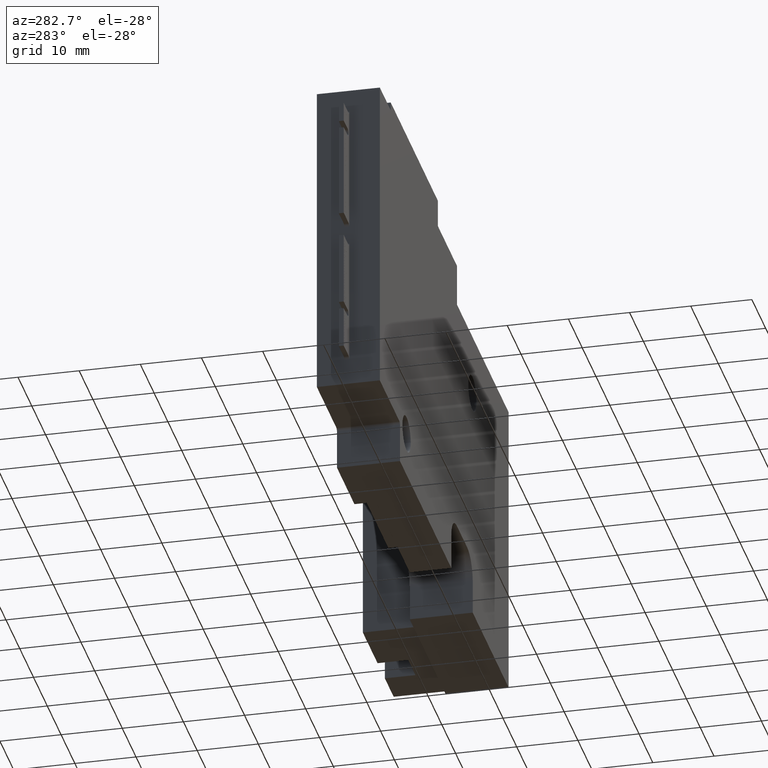
[diagram: clean part render]
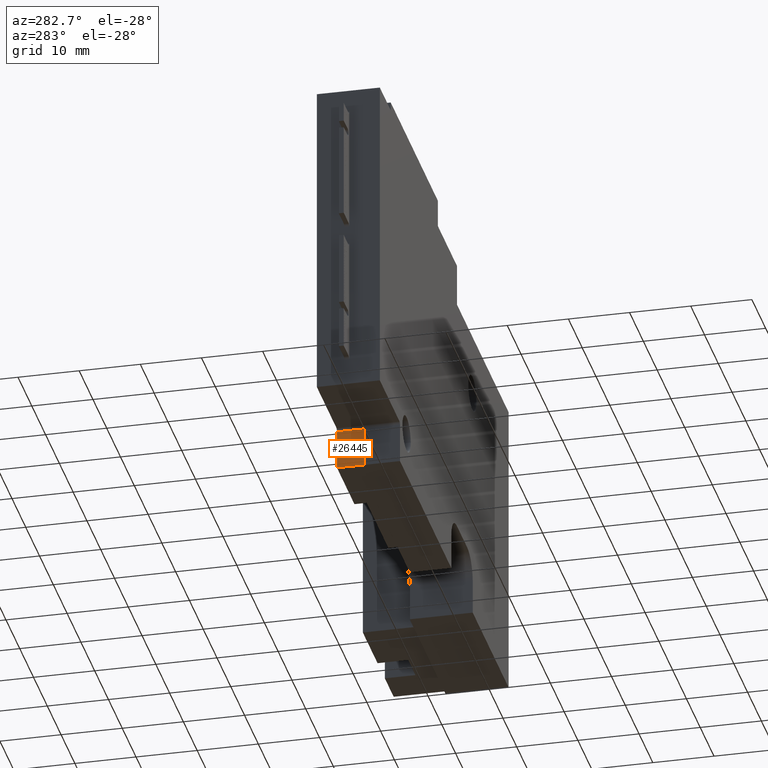
[diagram: same view with one face highlighted and labeled with its STEP entity id]
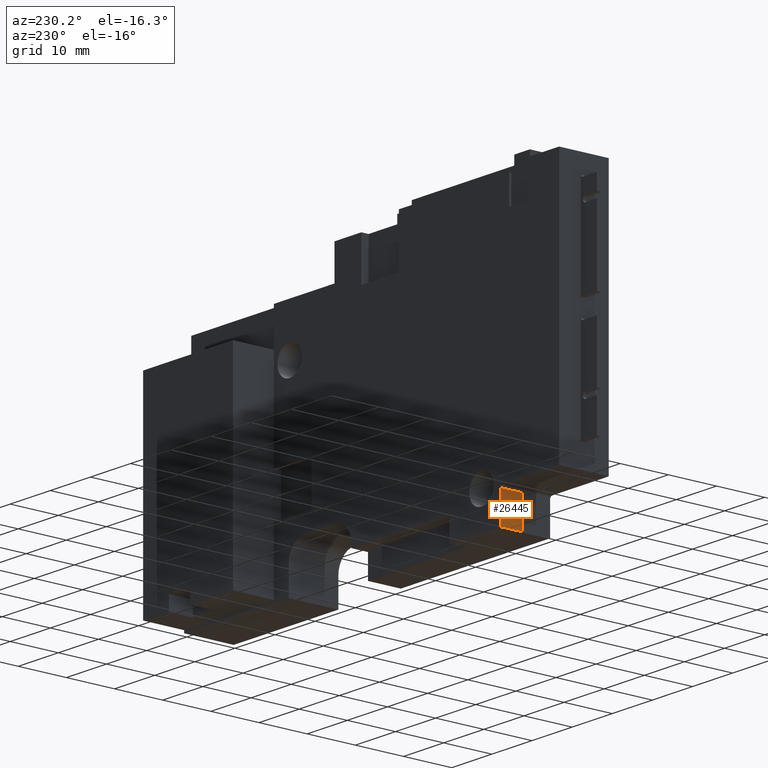
[diagram: same view with one face highlighted and labeled with its STEP entity id]
A machine part, auxiliary view. The second image highlights one B-rep face of the part: STEP entity #26445.
A second angle (auxiliary view) of the same face is appended — the face is thin or edge-on in the first view.
In plain terms, the highlighted planar face has unit normal (-1, 0, 0).
Its self-contained STEP definition (entity closure, byte-faithful):
#1799 = CARTESIAN_POINT ( 'NONE',  ( -25.60330062300408827, 7.850000000000967759, 291544.9999999919091 ) ) ;
#3605 = ORIENTED_EDGE ( 'NONE', *, *, #6538, .T. ) ;
#5526 = PLANE ( 'NONE',  #6523 ) ;
#5941 = DIRECTION ( 'NONE',  ( -1.000000000000000000, 0.000000000000000000, 2.026291678658003604E-14 ) ) ;
#6245 = LINE ( 'NONE', #1799, #23515 ) ;
#6389 = EDGE_LOOP ( 'NONE', ( #23662, #3605, #20704, #10346 ) ) ;
#6480 = EDGE_CURVE ( 'NONE', #7338, #14169, #12258, .T. ) ;
#6523 = AXIS2_PLACEMENT_3D ( 'NONE', #24812, #5941, #8205 ) ;
#6538 = EDGE_CURVE ( 'NONE', #7703, #9374, #6245, .T. ) ;
#7253 = FACE_OUTER_BOUND ( 'NONE', #6389, .T. ) ;
#7338 = VERTEX_POINT ( 'NONE', #26845 ) ;
#7572 = EDGE_CURVE ( 'NONE', #9374, #14169, #25020, .T. ) ;
#7703 = VERTEX_POINT ( 'NONE', #17504 ) ;
#8205 = DIRECTION ( 'NONE',  ( 2.026291678658003604E-14, 0.000000000000000000, 1.000000000000000000 ) ) ;
#9374 = VERTEX_POINT ( 'NONE', #12193 ) ;
#10050 = CARTESIAN_POINT ( 'NONE',  ( -25.60330062891214808, 131.5007172433329004, -25.01358310240675564 ) ) ;
#10238 = DIRECTION ( 'NONE',  ( -0.000000000000000000, -1.000000000000000000, -0.000000000000000000 ) ) ;
#10346 = ORIENTED_EDGE ( 'NONE', *, *, #6480, .F. ) ;
#12193 = CARTESIAN_POINT ( 'NONE',  ( -25.60330062891227954, 7.850000000000967759, -31.52000000005727998 ) ) ;
#12258 = LINE ( 'NONE', #18031, #24399 ) ;
#12551 = DIRECTION ( 'NONE',  ( -0.000000000000000000, -1.000000000000000000, -0.000000000000000000 ) ) ;
#12867 = EDGE_CURVE ( 'NONE', #7703, #7338, #20694, .T. ) ;
#13531 = VECTOR ( 'NONE', #12551, 1000.000000000000000 ) ;
#14169 = VERTEX_POINT ( 'NONE', #25581 ) ;
#17504 = CARTESIAN_POINT ( 'NONE',  ( -25.60330062892264635, 7.850000000000967759, -25.01358310240675564 ) ) ;
#18031 = CARTESIAN_POINT ( 'NONE',  ( -25.60330062300408827, 3.350000000000960654, 291544.9999999919091 ) ) ;
#19129 = DIRECTION ( 'NONE',  ( -2.026291678658003604E-14, 0.000000000000000000, -1.000000000000000000 ) ) ;
#20694 = LINE ( 'NONE', #10050, #13531 ) ;
#20704 = ORIENTED_EDGE ( 'NONE', *, *, #7572, .T. ) ;
#22322 = DIRECTION ( 'NONE',  ( -2.026291678658003604E-14, 0.000000000000000000, -1.000000000000000000 ) ) ;
#22781 = CARTESIAN_POINT ( 'NONE',  ( -25.60330062891580383, 131.5007172433329004, -31.52000000001815039 ) ) ;
#23515 = VECTOR ( 'NONE', #19129, 1000.000000000000000 ) ;
#23662 = ORIENTED_EDGE ( 'NONE', *, *, #12867, .F. ) ;
#24399 = VECTOR ( 'NONE', #22322, 1000.000000000000000 ) ;
#24812 = CARTESIAN_POINT ( 'NONE',  ( -25.60330062300408827, 131.5007172433329004, 291544.9999999919091 ) ) ;
#25020 = LINE ( 'NONE', #22781, #25385 ) ;
#25385 = VECTOR ( 'NONE', #10238, 1000.000000000000000 ) ;
#25581 = CARTESIAN_POINT ( 'NONE',  ( -25.60330062891580383, 3.350000000000960654, -31.52000000001815039 ) ) ;
#26445 = ADVANCED_FACE ( 'NONE', ( #7253 ), #5526, .T. ) ;
#26845 = CARTESIAN_POINT ( 'NONE',  ( -25.60330062891214808, 3.350000000000960654, -25.01358310240675564 ) ) ;